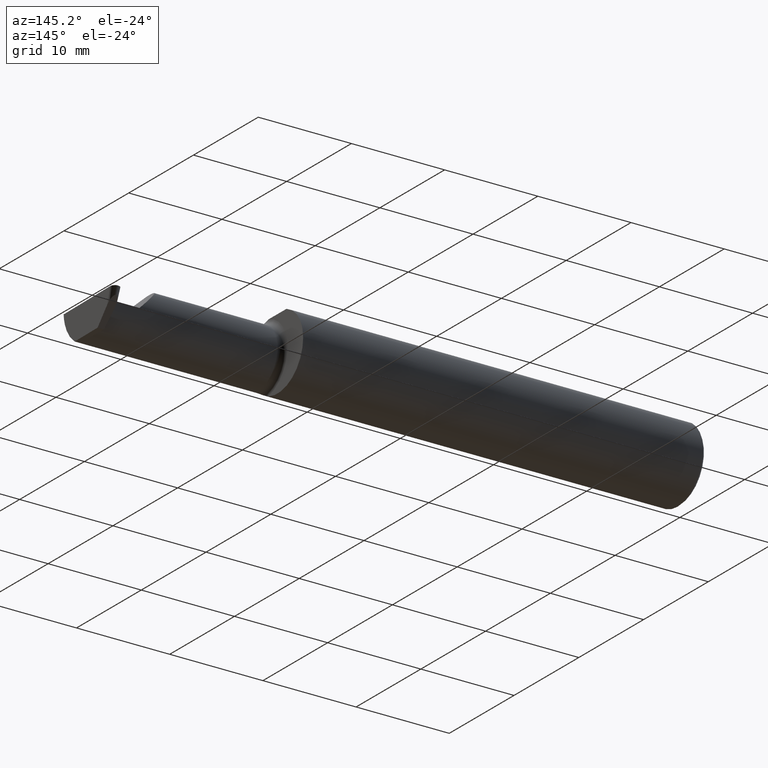
[diagram: clean part render]
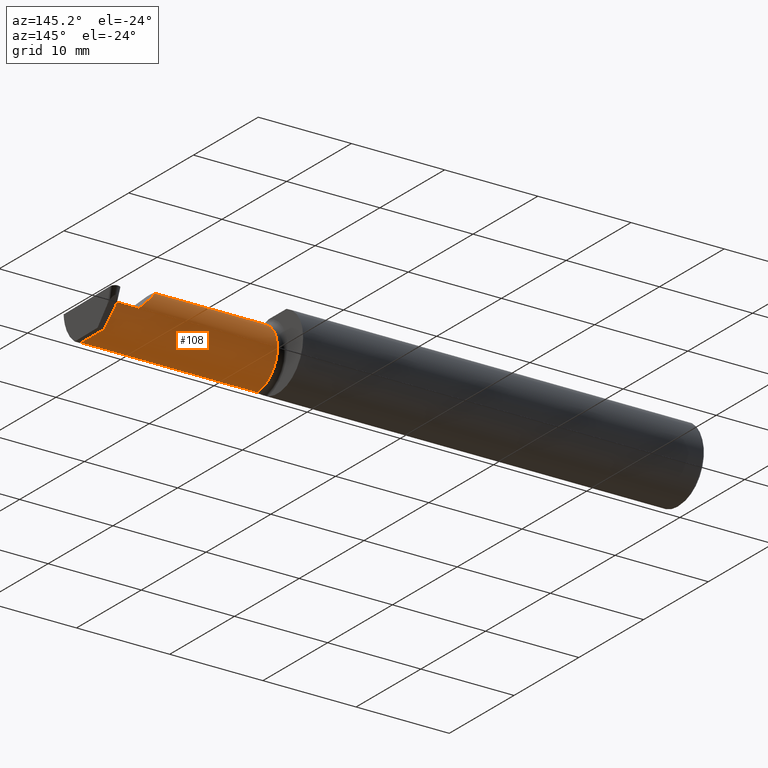
[diagram: same view with one face highlighted and labeled with its STEP entity id]
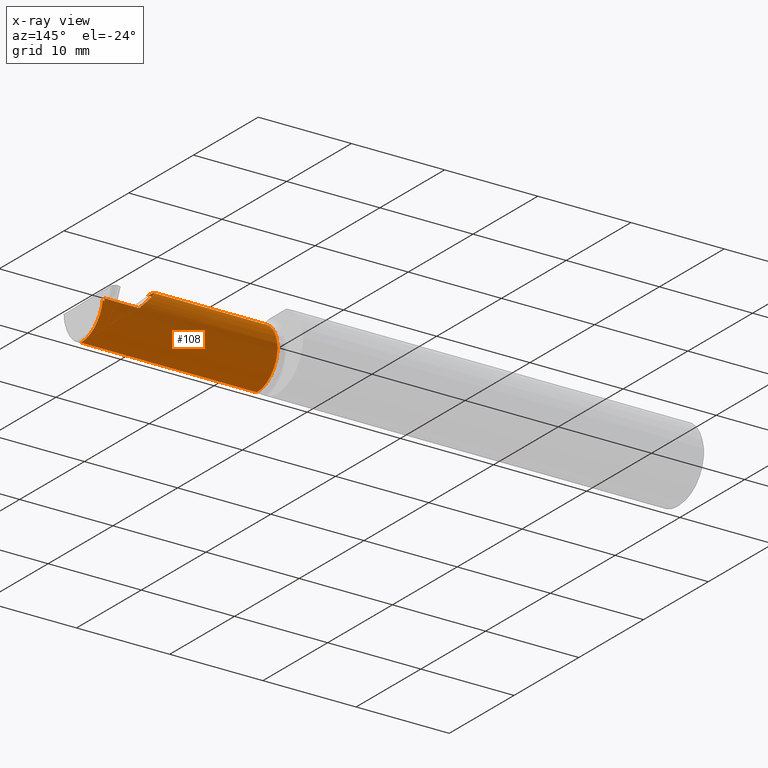
[diagram: x-ray of the same camera — body ghosted, the highlighted face saturated]
A machine part, auxiliary view. The second image highlights one B-rep face of the part: STEP entity #108.
The next image is the same camera in x-ray: the body ghosted, the highlighted face saturated — about 0% of this face is hidden behind the body in this view.
In plain terms, the highlighted cylindrical surface (edge-blend (fillet) strip) has radius 3.175 mm, axis along (-1, -0, -0).
Its self-contained STEP definition (entity closure, byte-faithful):
#9 = CARTESIAN_POINT ( 'NONE',  ( 2.455817866257967275, 0.03559550628247790810, -0.008719559218017784372 ) ) ;
#20 = EDGE_LOOP ( 'NONE', ( #134, #317, #386, #79, #33, #667, #521, #685 ) ) ;
#33 = ORIENTED_EDGE ( 'NONE', *, *, #480, .T. ) ;
#37 = VECTOR ( 'NONE', #378, 39.37007874015748143 ) ;
#43 = EDGE_CURVE ( 'NONE', #324, #530, #611, .T. ) ;
#48 = CARTESIAN_POINT ( 'NONE',  ( 1.699999999999999067, 0.03559550628246697240, -0.008719559218174058671 ) ) ;
#53 = EDGE_CURVE ( 'NONE', #61, #682, #129, .T. ) ;
#61 = VERTEX_POINT ( 'NONE', #492 ) ;
#79 = ORIENTED_EDGE ( 'NONE', *, *, #43, .F. ) ;
#104 = VERTEX_POINT ( 'NONE', #316 ) ;
#108 = ADVANCED_FACE ( 'NONE', ( #802 ), #487, .T. ) ;
#114 = DIRECTION ( 'NONE',  ( 0.000000000000000000, 0.000000000000000000, 1.000000000000000000 ) ) ;
#119 = EDGE_CURVE ( 'NONE', #176, #61, #371, .T. ) ;
#125 = DIRECTION ( 'NONE',  ( -1.000000000000000000, -0.000000000000000000, -0.000000000000000000 ) ) ;
#129 = LINE ( 'NONE', #48, #359 ) ;
#132 = CARTESIAN_POINT ( 'NONE',  ( 1.699999999999999956, 0.03590000000000000135, 9.797174393178831081E-17 ) ) ;
#134 = ORIENTED_EDGE ( 'NONE', *, *, #119, .F. ) ;
#142 = CARTESIAN_POINT ( 'NONE',  ( 2.455817866257967275, 0.03559550628247790810, -0.008719559218017784372 ) ) ;
#168 = EDGE_CURVE ( 'NONE', #104, #526, #760, .T. ) ;
#169 = CARTESIAN_POINT ( 'NONE',  ( 1.724999999999999867, -0.08910000000000001252, 0.1250000000000000278 ) ) ;
#176 = VERTEX_POINT ( 'NONE', #203 ) ;
#184 = CARTESIAN_POINT ( 'NONE',  ( 1.699999999999999956, -0.08909999999999999865, -0.1250000000000000278 ) ) ;
#203 = CARTESIAN_POINT ( 'NONE',  ( 2.467773529127905707, -0.08910000000000001252, -0.1250000000000000278 ) ) ;
#235 = CARTESIAN_POINT ( 'NONE',  ( 2.236776695296636142, 0.03589999999999995972, 0.07322330470336316233 ) ) ;
#237 = DIRECTION ( 'NONE',  ( -1.000000000000000000, -0.000000000000000000, -0.000000000000000000 ) ) ;
#263 = CARTESIAN_POINT ( 'NONE',  ( 2.455919364163807739, 0.03569700418831858735, -0.005813039478678525517 ) ) ;
#316 = CARTESIAN_POINT ( 'NONE',  ( 2.310000000000000053, 0.03590000000000000135, 9.797174393178831081E-17 ) ) ;
#317 = ORIENTED_EDGE ( 'NONE', *, *, #656, .T. ) ;
#324 = VERTEX_POINT ( 'NONE', #468 ) ;
#359 = VECTOR ( 'NONE', #431, 39.37007874015748143 ) ;
#365 = LINE ( 'NONE', #184, #772 ) ;
#371 =( BOUNDED_CURVE ( )  B_SPLINE_CURVE ( 3, ( #456, #570, #632, #564 ),
 .UNSPECIFIED., .F., .F. ) 
 B_SPLINE_CURVE_WITH_KNOTS ( ( 4, 4 ),
 ( 3.176499238629679756, 4.677482395344783050 ),
 .UNSPECIFIED. ) 
 CURVE ( )  GEOMETRIC_REPRESENTATION_ITEM ( )  RATIONAL_B_SPLINE_CURVE ( ( 1.000000000000000000, 0.8209024677461181918, 0.8209024677461181918, 1.000000000000000000 ) ) 
 REPRESENTATION_ITEM ( '' )  );
#378 = DIRECTION ( 'NONE',  ( 1.000000000000000000, 0.000000000000000000, 0.000000000000000000 ) ) ;
#386 = ORIENTED_EDGE ( 'NONE', *, *, #518, .F. ) ;
#421 = CARTESIAN_POINT ( 'NONE',  ( 1.699999999999999956, -0.08910000000000001252, 0.1250000000000000278 ) ) ;
#431 = DIRECTION ( 'NONE',  ( -1.000000000000000000, -0.000000000000000000, -0.000000000000000000 ) ) ;
#434 = DIRECTION ( 'NONE',  ( -1.000000000000000000, -0.000000000000000000, -0.000000000000000000 ) ) ;
#456 = CARTESIAN_POINT ( 'NONE',  ( 2.467773529127905707, -0.08910000000000001252, -0.1250000000000000278 ) ) ;
#461 = B_SPLINE_CURVE_WITH_KNOTS ( 'NONE', 3,
 ( #9, #263, #687, #759 ),
 .UNSPECIFIED., .F., .F.,
 ( 4, 4 ),
 ( 0.000000000000000000, 1.000000000000000000 ),
 .UNSPECIFIED. ) ;
#462 = AXIS2_PLACEMENT_3D ( 'NONE', #532, #479, #779 ) ;
#468 = CARTESIAN_POINT ( 'NONE',  ( 2.184999999999998721, -0.08910000000000001252, 0.1250000000000000278 ) ) ;
#479 = DIRECTION ( 'NONE',  ( -1.000000000000000000, -0.000000000000000000, -0.000000000000000000 ) ) ;
#480 = EDGE_CURVE ( 'NONE', #324, #104, #727, .T. ) ;
#487 = CYLINDRICAL_SURFACE ( 'NONE', #716, 0.1250000000000000278 ) ;
#492 = CARTESIAN_POINT ( 'NONE',  ( 2.463491912695082053, 0.03559550628246012371, -0.008719559218016929153 ) ) ;
#518 = EDGE_CURVE ( 'NONE', #530, #691, #597, .T. ) ;
#521 = ORIENTED_EDGE ( 'NONE', *, *, #726, .F. ) ;
#526 = VERTEX_POINT ( 'NONE', #723 ) ;
#530 = VERTEX_POINT ( 'NONE', #169 ) ;
#532 = CARTESIAN_POINT ( 'NONE',  ( 1.724999999999999867, -0.08910000000000001252, 0.000000000000000000 ) ) ;
#539 = CARTESIAN_POINT ( 'NONE',  ( 2.310000000000000053, 0.03590000000000000135, 9.797174393178831081E-17 ) ) ;
#564 = CARTESIAN_POINT ( 'NONE',  ( 2.463491912695082053, 0.03559550628246012371, -0.008719559218016929153 ) ) ;
#570 = CARTESIAN_POINT ( 'NONE',  ( 2.467687720866161172, -0.01986741890188695875, -0.1250000000000000555 ) ) ;
#597 = CIRCLE ( 'NONE', #462, 0.1250000000000000278 ) ;
#611 = LINE ( 'NONE', #421, #715 ) ;
#625 = CARTESIAN_POINT ( 'NONE',  ( 1.724999999999999867, -0.08909999999999999865, -0.1250000000000000278 ) ) ;
#632 = CARTESIAN_POINT ( 'NONE',  ( 2.465949139812158020, 0.03076608555686791147, -0.07778349322819352873 ) ) ;
#655 = CARTESIAN_POINT ( 'NONE',  ( 2.184999999999998721, -0.08910000000000001252, 0.1250000000000000278 ) ) ;
#656 = EDGE_CURVE ( 'NONE', #176, #691, #365, .T. ) ;
#667 = ORIENTED_EDGE ( 'NONE', *, *, #168, .T. ) ;
#682 = VERTEX_POINT ( 'NONE', #142 ) ;
#685 = ORIENTED_EDGE ( 'NONE', *, *, #53, .F. ) ;
#687 = CARTESIAN_POINT ( 'NONE',  ( 2.456020862069648647, 0.03579850209415926660, -0.002906519739339262758 ) ) ;
#691 = VERTEX_POINT ( 'NONE', #625 ) ;
#715 = VECTOR ( 'NONE', #125, 39.37007874015748143 ) ;
#716 = AXIS2_PLACEMENT_3D ( 'NONE', #729, #237, #114 ) ;
#723 = CARTESIAN_POINT ( 'NONE',  ( 2.456122359975489111, 0.03589999999999995278, 0.000000000000000000 ) ) ;
#726 = EDGE_CURVE ( 'NONE', #682, #526, #461, .T. ) ;
#727 =( BOUNDED_CURVE ( )  B_SPLINE_CURVE ( 3, ( #655, #782, #235, #539 ),
 .UNSPECIFIED., .F., .F. ) 
 B_SPLINE_CURVE_WITH_KNOTS ( ( 4, 4 ),
 ( 0.000000000000000000, 1.570796326794896336 ),
 .UNSPECIFIED. ) 
 CURVE ( )  GEOMETRIC_REPRESENTATION_ITEM ( )  RATIONAL_B_SPLINE_CURVE ( ( 1.000000000000000000, 0.8047378541243650485, 0.8047378541243650485, 1.000000000000000000 ) ) 
 REPRESENTATION_ITEM ( '' )  );
#729 = CARTESIAN_POINT ( 'NONE',  ( 1.699999999999999956, -0.08910000000000001252, 0.000000000000000000 ) ) ;
#759 = CARTESIAN_POINT ( 'NONE',  ( 2.456122359975489111, 0.03589999999999995278, 0.000000000000000000 ) ) ;
#760 = LINE ( 'NONE', #132, #37 ) ;
#772 = VECTOR ( 'NONE', #434, 39.37007874015748143 ) ;
#779 = DIRECTION ( 'NONE',  ( 0.000000000000000000, 0.000000000000000000, 1.000000000000000000 ) ) ;
#782 = CARTESIAN_POINT ( 'NONE',  ( 2.184999999999998277, -0.01587669529663690224, 0.1250000000000000555 ) ) ;
#802 = FACE_OUTER_BOUND ( 'NONE', #20, .T. ) ;